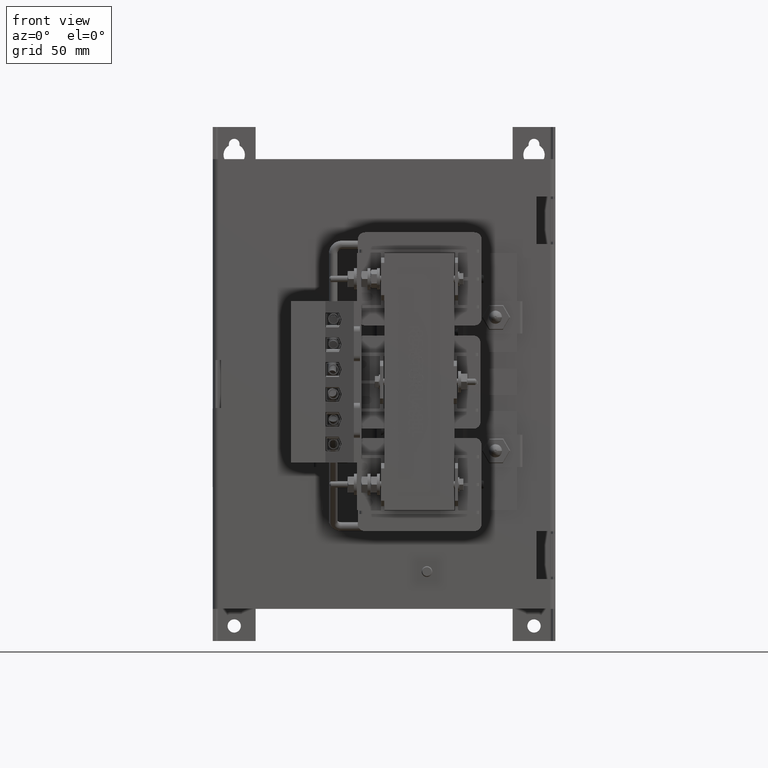
[diagram: clean part render]
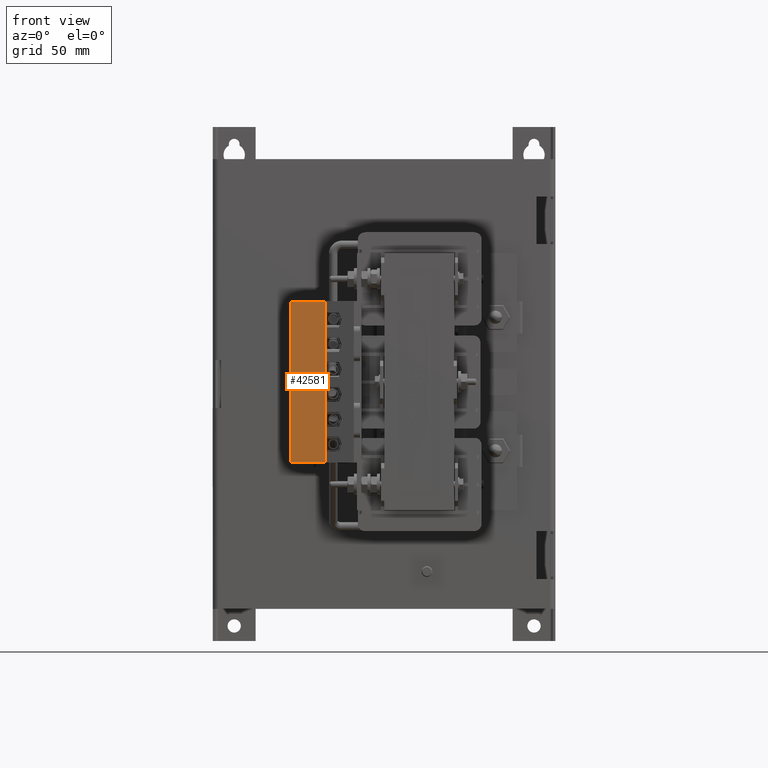
[diagram: same view with one face highlighted and labeled with its STEP entity id]
A machine part, front view. The second image highlights one B-rep face of the part: STEP entity #42581.
In plain terms, the highlighted planar face has unit normal (-0, -1, 0).
Its self-contained STEP definition (entity closure, byte-faithful):
#2894=PLANE('',#46818);
#5499=FACE_OUTER_BOUND('',#8124,.T.);
#8124=EDGE_LOOP('',(#36259,#36260,#36261,#36262));
#11735=LINE('',#67498,#15780);
#11764=LINE('',#67556,#15809);
#11765=LINE('',#67559,#15810);
#11766=LINE('',#67560,#15811);
#15780=VECTOR('',#55875,0.393700787401575);
#15809=VECTOR('',#55934,0.393700787401575);
#15810=VECTOR('',#55937,0.393700787401575);
#15811=VECTOR('',#55938,0.393700787401575);
#20896=VERTEX_POINT('',#67466);
#20910=VERTEX_POINT('',#67496);
#20924=VERTEX_POINT('',#67554);
#20925=VERTEX_POINT('',#67558);
#26252=EDGE_CURVE('',#20896,#20910,#11735,.T.);
#26281=EDGE_CURVE('',#20910,#20924,#11764,.T.);
#26282=EDGE_CURVE('',#20924,#20925,#11765,.T.);
#26283=EDGE_CURVE('',#20896,#20925,#11766,.T.);
#36259=ORIENTED_EDGE('',*,*,#26282,.T.);
#36260=ORIENTED_EDGE('',*,*,#26283,.F.);
#36261=ORIENTED_EDGE('',*,*,#26252,.T.);
#36262=ORIENTED_EDGE('',*,*,#26281,.T.);
#42581=ADVANCED_FACE('',(#5499),#2894,.T.);
#46818=AXIS2_PLACEMENT_3D('',#67557,#55935,#55936);
#55875=DIRECTION('',(1.,0.,0.));
#55934=DIRECTION('',(0.,0.,1.));
#55935=DIRECTION('center_axis',(0.,-1.,0.));
#55936=DIRECTION('ref_axis',(0.,0.,-1.));
#55937=DIRECTION('',(-1.,0.,0.));
#55938=DIRECTION('',(0.,0.,1.));
#67466=CARTESIAN_POINT('',(-0.750542157859332,-0.495199817600541,-1.884));
#67496=CARTESIAN_POINT('',(0.0579578421406488,-0.495199817600541,-1.884));
#67498=CARTESIAN_POINT('',(-0.750542157859332,-0.495199817600541,-1.884));
#67554=CARTESIAN_POINT('',(0.0579578421406488,-0.495199817600541,1.884));
#67556=CARTESIAN_POINT('',(0.0579578421406488,-0.495199817600541,0.));
#67557=CARTESIAN_POINT('Origin',(0.0579578421406488,-0.495199817600541,
0.));
#67558=CARTESIAN_POINT('',(-0.750542157859332,-0.495199817600541,1.884));
#67559=CARTESIAN_POINT('',(-0.750542157859332,-0.495199817600541,1.884));
#67560=CARTESIAN_POINT('',(-0.750542157859332,-0.495199817600541,0.));